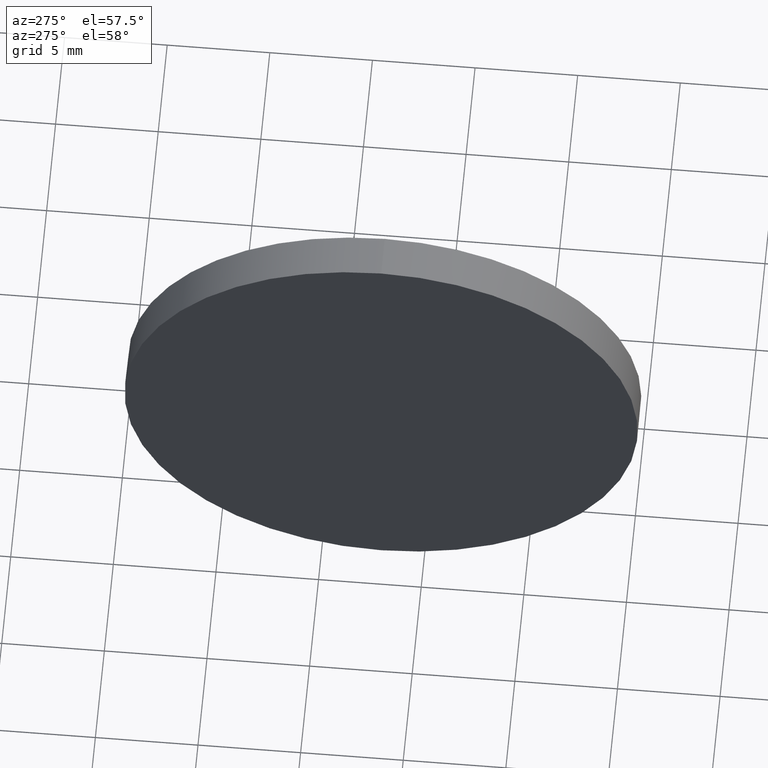
[diagram: clean part render]
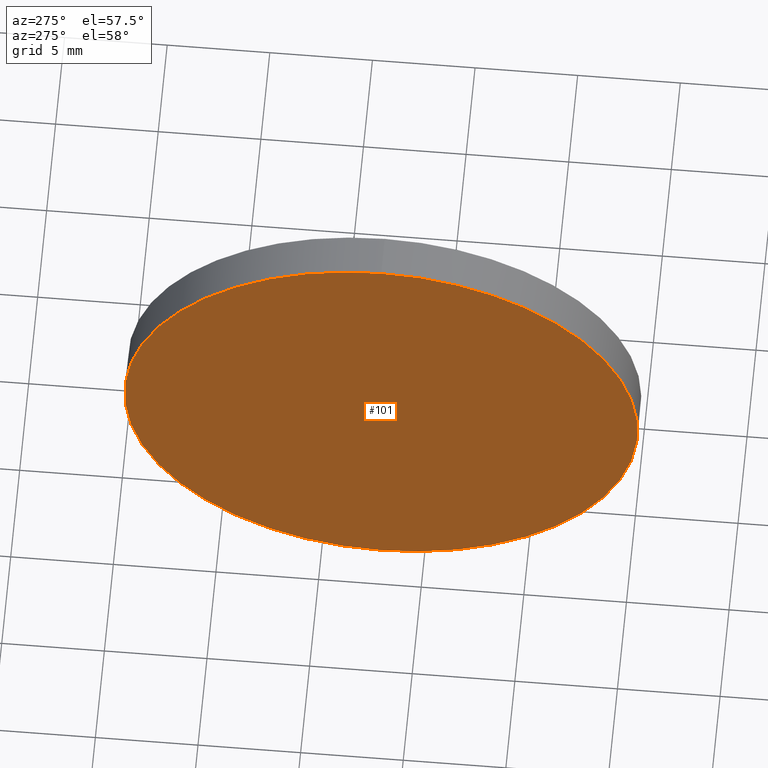
[diagram: same view with one face highlighted and labeled with its STEP entity id]
A machine part, auxiliary view. The second image highlights one B-rep face of the part: STEP entity #101.
In plain terms, the highlighted planar face has unit normal (1, 0, 0).
Its self-contained STEP definition (entity closure, byte-faithful):
#7 = CARTESIAN_POINT ( 'NONE',  ( 446.6061647457008200, 82.09384113862540700, -12.50000000000001100 ) ) ;
#11 = CARTESIAN_POINT ( 'NONE',  ( 446.6061647457008200, 82.09384113862540700, 0.0000000000000000000 ) ) ;
#16 = AXIS2_PLACEMENT_3D ( 'NONE', #113, #66, #117 ) ;
#33 = AXIS2_PLACEMENT_3D ( 'NONE', #11, #57, #55 ) ;
#44 = DIRECTION ( 'NONE',  ( 0.0000000000000000000, 0.0000000000000000000, -1.000000000000000000 ) ) ;
#50 = FACE_OUTER_BOUND ( 'NONE', #182, .T. ) ;
#55 = DIRECTION ( 'NONE',  ( 0.0000000000000000000, 0.0000000000000000000, 1.000000000000000000 ) ) ;
#57 = DIRECTION ( 'NONE',  ( -1.000000000000000000, -0.0000000000000000000, -0.0000000000000000000 ) ) ;
#66 = DIRECTION ( 'NONE',  ( -1.000000000000000000, -0.0000000000000000000, -0.0000000000000000000 ) ) ;
#67 = DIRECTION ( 'NONE',  ( 1.000000000000000000, 0.0000000000000000000, 0.0000000000000000000 ) ) ;
#72 = EDGE_CURVE ( 'NONE', #115, #148, #128, .T. ) ;
#90 = AXIS2_PLACEMENT_3D ( 'NONE', #142, #67, #44 ) ;
#96 = ORIENTED_EDGE ( 'NONE', *, *, #72, .T. ) ;
#101 = ADVANCED_FACE ( 'NONE', ( #50 ), #159, .F. ) ;
#113 = CARTESIAN_POINT ( 'NONE',  ( 446.6061647457008200, 82.09384113862540700, 0.0000000000000000000 ) ) ;
#115 = VERTEX_POINT ( 'NONE', #7 ) ;
#117 = DIRECTION ( 'NONE',  ( 0.0000000000000000000, 0.0000000000000000000, 1.000000000000000000 ) ) ;
#119 = ORIENTED_EDGE ( 'NONE', *, *, #156, .T. ) ;
#128 = CIRCLE ( 'NONE', #33, 12.50000000000001100 ) ;
#136 = CARTESIAN_POINT ( 'NONE',  ( 446.6061647457008200, 82.09384113862540700, 12.50000000000001100 ) ) ;
#142 = CARTESIAN_POINT ( 'NONE',  ( 446.6061647457008200, 82.09384113862540700, 0.0000000000000000000 ) ) ;
#148 = VERTEX_POINT ( 'NONE', #136 ) ;
#156 = EDGE_CURVE ( 'NONE', #148, #115, #185, .T. ) ;
#159 = PLANE ( 'NONE',  #90 ) ;
#182 = EDGE_LOOP ( 'NONE', ( #119, #96 ) ) ;
#185 = CIRCLE ( 'NONE', #16, 12.50000000000001100 ) ;